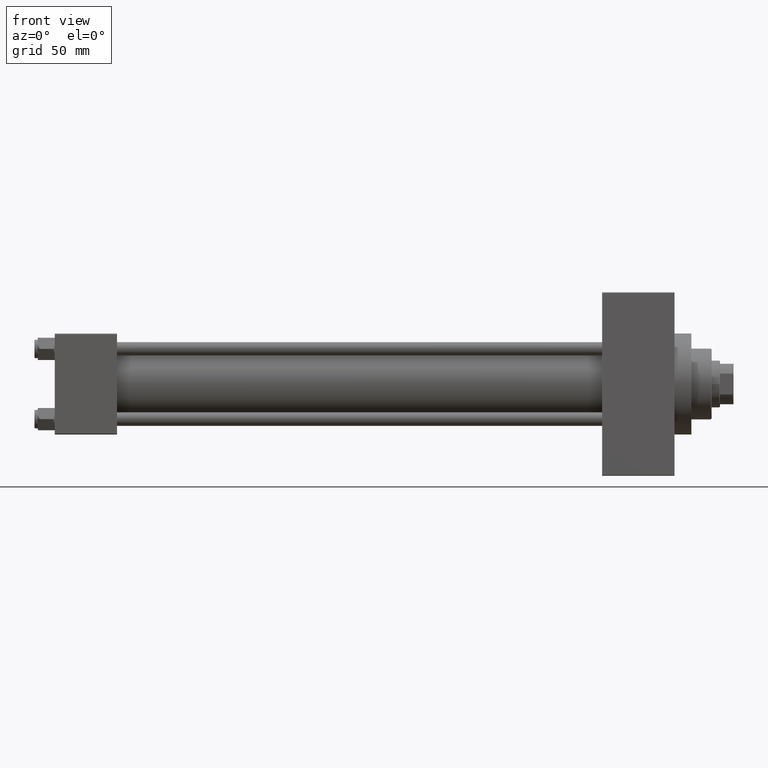
[diagram: clean part render]
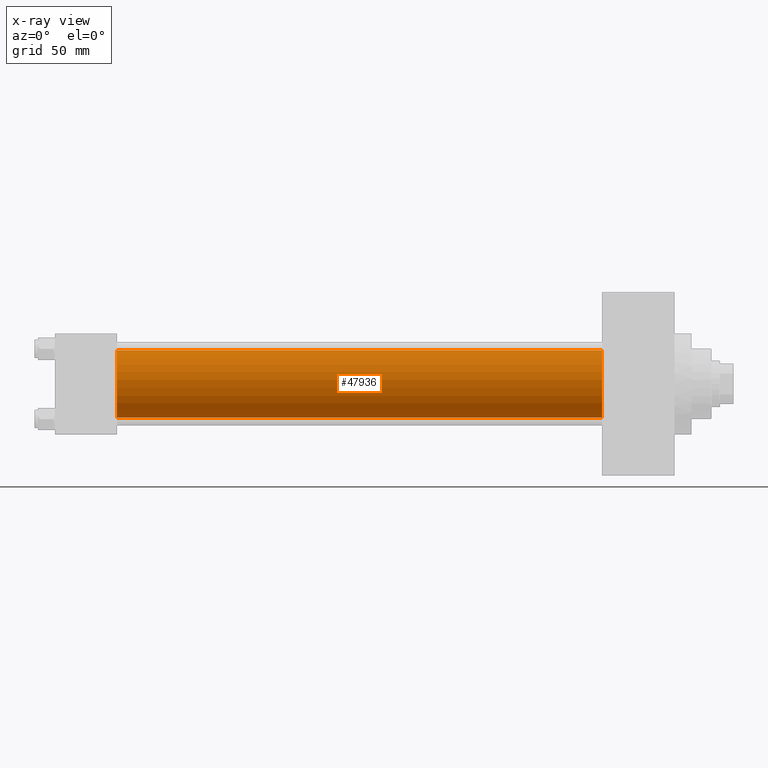
[diagram: x-ray — body ghosted, one internal face saturated and labeled with its STEP entity id]
A machine part, front view, then the same camera in x-ray: the body is ghosted and one INTERNAL B-rep face — a face not visible from any outside direction — is saturated and labeled: STEP entity #47936.
In plain terms, the highlighted cylindrical surface (edge-blend (fillet) strip) has radius 20 mm, axis along (-1, -0, -0).
Its self-contained STEP definition (entity closure, byte-faithful):
#3718 = VECTOR ( 'NONE', #41147, 1000.000000000000000 ) ;
#6475 = DIRECTION ( 'NONE',  ( -1.000000000000000000, -0.000000000000000000, -0.000000000000000000 ) ) ;
#6717 = CARTESIAN_POINT ( 'NONE',  ( 324.9999999999999432, -2.602085213965210642E-15, 0.000000000000000000 ) ) ;
#7546 = CARTESIAN_POINT ( 'NONE',  ( 324.9999999999999432, -1.527916156705042519E-16, -20.00000000000000000 ) ) ;
#8109 = AXIS2_PLACEMENT_3D ( 'NONE', #6717, #6475, #9985 ) ;
#9716 = EDGE_CURVE ( 'NONE', #31347, #43823, #46231, .T. ) ;
#9985 = DIRECTION ( 'NONE',  ( 0.000000000000000000, 0.000000000000000000, 1.000000000000000000 ) ) ;
#9988 = AXIS2_PLACEMENT_3D ( 'NONE', #42013, #49309, #19173 ) ;
#13069 = CARTESIAN_POINT ( 'NONE',  ( 324.9999999999999432, -2.602085213965210642E-15, 20.00000000000000000 ) ) ;
#18197 = CARTESIAN_POINT ( 'NONE',  ( 324.9999999999999432, -1.527916156705042519E-16, -20.00000000000000000 ) ) ;
#18221 = CYLINDRICAL_SURFACE ( 'NONE', #8109, 20.00000000000000000 ) ;
#18521 = ORIENTED_EDGE ( 'NONE', *, *, #47643, .F. ) ;
#19173 = DIRECTION ( 'NONE',  ( 0.000000000000000000, 0.000000000000000000, -1.000000000000000000 ) ) ;
#20328 = CARTESIAN_POINT ( 'NONE',  ( 37.00000000000000000, -2.602085213965210642E-15, 0.000000000000000000 ) ) ;
#20573 = DIRECTION ( 'NONE',  ( 1.000000000000000000, 0.000000000000000000, 0.000000000000000000 ) ) ;
#20870 = AXIS2_PLACEMENT_3D ( 'NONE', #20328, #20573, #39645 ) ;
#23260 = CIRCLE ( 'NONE', #20870, 20.00000000000000000 ) ;
#23513 = ORIENTED_EDGE ( 'NONE', *, *, #9716, .F. ) ;
#27133 = ORIENTED_EDGE ( 'NONE', *, *, #29680, .T. ) ;
#29511 = FACE_OUTER_BOUND ( 'NONE', #42436, .T. ) ;
#29680 = EDGE_CURVE ( 'NONE', #31347, #33786, #46036, .T. ) ;
#30087 = LINE ( 'NONE', #7546, #3718 ) ;
#31347 = VERTEX_POINT ( 'NONE', #13069 ) ;
#33579 = EDGE_CURVE ( 'NONE', #33786, #48053, #30087, .T. ) ;
#33786 = VERTEX_POINT ( 'NONE', #18197 ) ;
#34430 = CARTESIAN_POINT ( 'NONE',  ( 324.9999999999999432, -2.602085213965210642E-15, 20.00000000000000000 ) ) ;
#34681 = DIRECTION ( 'NONE',  ( -1.000000000000000000, -0.000000000000000000, -0.000000000000000000 ) ) ;
#35260 = CARTESIAN_POINT ( 'NONE',  ( 37.00000000000000000, -1.527916156705042519E-16, -20.00000000000000000 ) ) ;
#35465 = CARTESIAN_POINT ( 'NONE',  ( 37.00000000000000000, -2.602085213965210642E-15, 20.00000000000000000 ) ) ;
#39645 = DIRECTION ( 'NONE',  ( 0.000000000000000000, 0.000000000000000000, -1.000000000000000000 ) ) ;
#41147 = DIRECTION ( 'NONE',  ( -1.000000000000000000, -0.000000000000000000, -0.000000000000000000 ) ) ;
#42013 = CARTESIAN_POINT ( 'NONE',  ( 324.9999999999999432, -2.602085213965210642E-15, 0.000000000000000000 ) ) ;
#42436 = EDGE_LOOP ( 'NONE', ( #27133, #45847, #18521, #23513 ) ) ;
#43381 = VECTOR ( 'NONE', #34681, 1000.000000000000000 ) ;
#43823 = VERTEX_POINT ( 'NONE', #35465 ) ;
#45847 = ORIENTED_EDGE ( 'NONE', *, *, #33579, .T. ) ;
#46036 = CIRCLE ( 'NONE', #9988, 20.00000000000000000 ) ;
#46231 = LINE ( 'NONE', #34430, #43381 ) ;
#47643 = EDGE_CURVE ( 'NONE', #43823, #48053, #23260, .T. ) ;
#47936 = ADVANCED_FACE ( 'NONE', ( #29511 ), #18221, .F. ) ;
#48053 = VERTEX_POINT ( 'NONE', #35260 ) ;
#49309 = DIRECTION ( 'NONE',  ( 1.000000000000000000, 0.000000000000000000, 0.000000000000000000 ) ) ;